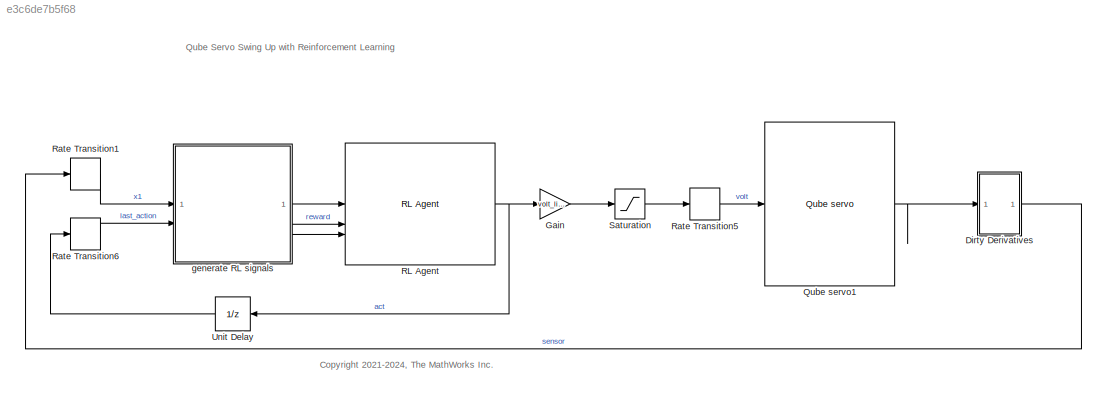
MODEL slx_e3c6de7b5f68
KIND model
CONFIG AbsTol = 1e-3
CONFIG EnableMultiTasking = off
CONFIG FixedStep = auto
CONFIG MaxStep = auto
CONFIG MinStep = auto
CONFIG RelTol = 1e-3
CONFIG SampleTimeConstraint = Unconstrained
CONFIG SolverName = ode23t
CONFIG StartTime = 0.0
CONFIG StopTime = 10.0
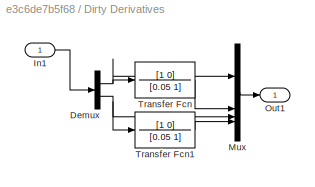
BLOCK [SubSystem] Dirty Derivatives
BLOCK [Demux] Dirty Derivatives/Demux
  Outputs = 2
BLOCK [Inport] Dirty Derivatives/In1
BLOCK [Mux] Dirty Derivatives/Mux
  DisplayOption = bar
BLOCK [Outport] Dirty Derivatives/Out1
BLOCK [TransferFcn] Dirty Derivatives/Transfer Fcn
  Denominator = [0.05 1]
  Numerator = [1 0]
BLOCK [TransferFcn] Dirty Derivatives/Transfer Fcn1
  Denominator = [0.05 1]
  Numerator = [1 0]
BLOCK [Gain] Gain
  Gain = volt_limit
BLOCK [Reference] Qube servo1  REF=QuanserQube/Qube servo
  SourceBlock = QuanserQube/Qube servo
  SourceType = Qube servo 2 model by Simscape
BLOCK [Reference] RL Agent  REF=rllib/RL Agent
  SourceBlock = rllib/RL Agent
  SourceType = RL Agent
BLOCK [RateTransition] Rate Transition1
  OutPortSampleTime = Ts
BLOCK [RateTransition] Rate Transition5
BLOCK [RateTransition] Rate Transition6
  OutPortSampleTime = Ts
BLOCK [Saturate] Saturation
  LowerLimit = -volt_limit
  UpperLimit = volt_limit
BLOCK [UnitDelay] Unit Delay
  HasFrameUpgradeWarning = on
  SampleTime = -1
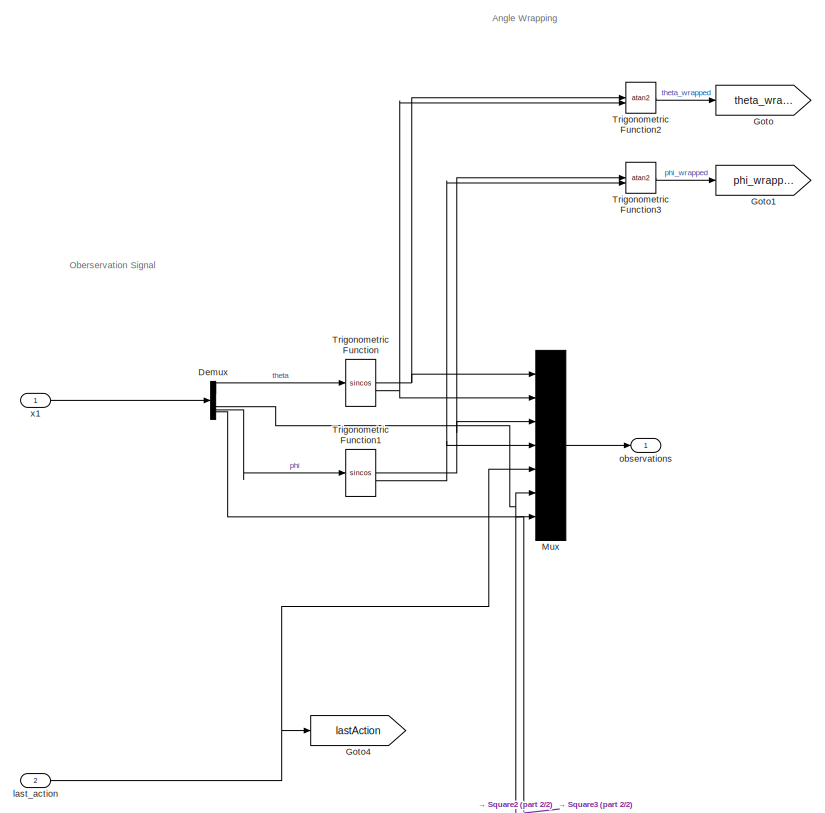
[diagram: generate RL signals - part 1/2, left side, full height]
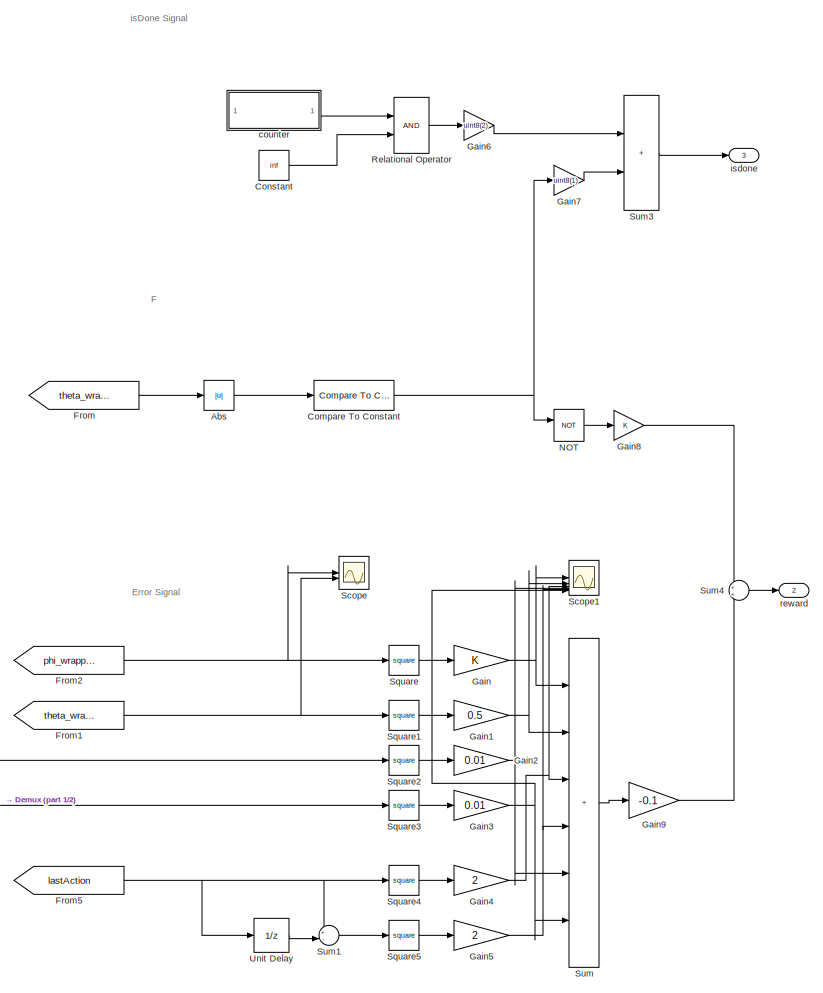
[diagram: generate RL signals - part 2/2, right side, full height]
BLOCK [SubSystem] generate RL signals
BLOCK [Abs] generate RL signals/Abs
  SaturateOnIntegerOverflow = off
BLOCK [Reference] generate RL signals/Compare To Constant  REF=simulink/Logic and Bit
Operations/Compare
To Constant
  SourceBlock = simulink/Logic and Bit\nOperations/Compare\nTo Constant
  SourceType = Compare To Constant
BLOCK [Constant] generate RL signals/Constant
  Value = inf
BLOCK [Demux] generate RL signals/Demux
BLOCK [From] generate RL signals/From
  GotoTag = theta_wrapped
BLOCK [From] generate RL signals/From1
  GotoTag = theta_wrapped
BLOCK [From] generate RL signals/From2
  GotoTag = phi_wrapped
BLOCK [From] generate RL signals/From5
  GotoTag = lastAction
BLOCK [Gain] generate RL signals/Gain
BLOCK [Gain] generate RL signals/Gain1
  Gain = 0.5
BLOCK [Gain] generate RL signals/Gain2
  Gain = 0.01
BLOCK [Gain] generate RL signals/Gain3
  Gain = 0.01
BLOCK [Gain] generate RL signals/Gain4
  Gain = 2
BLOCK [Gain] generate RL signals/Gain5
  Gain = 2
BLOCK [Gain] generate RL signals/Gain6
  Gain = uint8(2)
  OutDataTypeStr = uint8
BLOCK [Gain] generate RL signals/Gain7
  Gain = uint8(1)
  OutDataTypeStr = uint8
BLOCK [Gain] generate RL signals/Gain8
  OutDataTypeStr = double
BLOCK [Gain] generate RL signals/Gain9
  Gain = -0.1
BLOCK [Goto] generate RL signals/Goto
  GotoTag = theta_wrapped
BLOCK [Goto] generate RL signals/Goto1
  GotoTag = phi_wrapped
BLOCK [Goto] generate RL signals/Goto4
  GotoTag = lastAction
BLOCK [Mux] generate RL signals/Mux
  DisplayOption = bar
  Inputs = 7
BLOCK [Logic] generate RL signals/NOT
  AllPortsSameDT = off
  IconShape = distinctive
  Operator = NOT
  OutDataTypeStr = boolean
BLOCK [RelationalOperator] generate RL signals/Relational Operator
  InputSameDT = off
  OutDataTypeStr = boolean
  RndMeth = Simplest
BLOCK [Scope] generate RL signals/Scope
  ActiveDisplayYMaximum = 1
  ActiveDisplayYMinimum = -1
  Floating = off
  GraphicalSettings = {"Style":{"BackgroundColor":[0.12941176470588237,0.12941176470588237,0.12941176470588237],"AxesColor":[0.07058823529411765,0.07058823529411765,0.07058823529411765],"LabelsColor":[0.8509803921568627,0.8509803921568627,0.8509803921568627],"PreserveColors":false,"Visible":[true,true],"LineStyle":["-","-"],"LineWidth":[1.5,1.5],"BarWidth":[0.9,0.9],"LineColor":["auto","auto"],"LineFaceAlpha":[1,1],"Li...<+2135ch>
  MultipleDisplayCache = [{"MaxYLimMag":1,"MaxYLimReal":1,"MinYLimMag":0,"MinYLimReal":-1,"PlotAsMagnitudePhase":false,"ShowGrid":true,"ShowLegend":true,"Title":"%<SignalLabel>","YLabel":""}]
  NumInputPorts = 2
  ScopeFrameLocation = window
  ShowLegend = on
  WasSavedAsWebScope = on
  WindowPosition = [1.000000,1.000000,2560.000000,1381.000000,]
BLOCK [Scope] generate RL signals/Scope1
  ActiveDisplayYMaximum = 160.66023821447735
  ActiveDisplayYMinimum = -17.851137579386368
  DataLoggingVariableName = ScopeData1
  Floating = off
  GraphicalSettings = {"Style":{"BackgroundColor":[0.12941176470588237,0.12941176470588237,0.12941176470588237],"AxesColor":[0.07058823529411765,0.07058823529411765,0.07058823529411765],"LabelsColor":[0.8509803921568627,0.8509803921568627,0.8509803921568627],"PreserveColors":false,"Visible":[true,true,true,true,true,true],"LineStyle":["-","-","-","-","-","-"],"LineWidth":[1.5,1.5,1.5,1.5,1.5,1.5],"BarWidth":[0.9,0.9,0....<+2528ch>
  MultipleDisplayCache = [{"MaxYLimMag":160.66023821447735,"MaxYLimReal":160.66023821447735,"MinYLimMag":0,"MinYLimReal":-17.851137579386368,"PlotAsMagnitudePhase":false,"ShowGrid":true,"ShowLegend":true,"Title":"%<SignalLabel>","YLabel":""}]
  NumInputPorts = 6
  ScopeFrameLocation = window
  ShowLegend = on
  WasSavedAsWebScope = on
  WindowPosition = [1.000000,1.000000,2560.000000,1381.000000,]
BLOCK [Math] generate RL signals/Square
  Operator = square
BLOCK [Math] generate RL signals/Square1
  Operator = square
BLOCK [Math] generate RL signals/Square2
  Operator = square
BLOCK [Math] generate RL signals/Square3
  Operator = square
BLOCK [Math] generate RL signals/Square4
  Operator = square
BLOCK [Math] generate RL signals/Square5
  Operator = square
BLOCK [Sum] generate RL signals/Sum
  IconShape = rectangular
  Inputs = ++++++
BLOCK [Sum] generate RL signals/Sum1
  Inputs = +-|
BLOCK [Sum] generate RL signals/Sum3
  IconShape = rectangular
BLOCK [Sum] generate RL signals/Sum4
BLOCK [Trigonometry] generate RL signals/Trigonometric Function
  Operator = sincos
BLOCK [Trigonometry] generate RL signals/Trigonometric Function1
  Operator = sincos
BLOCK [Trigonometry] generate RL signals/Trigonometric Function2
  Operator = atan2
BLOCK [Trigonometry] generate RL signals/Trigonometric Function3
  Operator = atan2
BLOCK [UnitDelay] generate RL signals/Unit Delay
  HasFrameUpgradeWarning = on
  SampleTime = -1
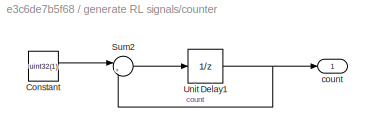
BLOCK [SubSystem] generate RL signals/counter
BLOCK [Constant] generate RL signals/counter/Constant
  Value = uint32(1)
BLOCK [Sum] generate RL signals/counter/Sum2
  AccumDataTypeStr = Inherit: Same as first input
  Inputs = |++
BLOCK [UnitDelay] generate RL signals/counter/Unit Delay1
  HasFrameUpgradeWarning = on
  SampleTime = Ts
BLOCK [Outport] generate RL signals/counter/count
  OutDataTypeStr = uint32
BLOCK [Outport] generate RL signals/isdone
  Port = 3
BLOCK [Inport] generate RL signals/last_action
  Port = 2
BLOCK [Outport] generate RL signals/observations
BLOCK [Outport] generate RL signals/reward
  Port = 2
BLOCK [Inport] generate RL signals/x1
  SampleTime = Ts
ANNOTATION (root): <copyright redacted>
ANNOTATION (root): Qube Servo Swing Up with Reinforcement Learning
ANNOTATION generate RL signals: Angle Wrapping
ANNOTATION generate RL signals: Error Signal
ANNOTATION generate RL signals: F
ANNOTATION generate RL signals: Oberservation Signal
ANNOTATION generate RL signals: isDone Signal
NET Dirty Derivatives/Demux:1 -> Dirty Derivatives/Mux:1, Dirty Derivatives/Transfer Fcn:1
NET Dirty Derivatives/Demux:2 -> Dirty Derivatives/Mux:3, Dirty Derivatives/Transfer Fcn1:1
LINE Dirty Derivatives/In1:1 -> Dirty Derivatives/Demux:1
LINE Dirty Derivatives/Mux:1 -> Dirty Derivatives/Out1:1
LINE Dirty Derivatives/Transfer Fcn1:1 -> Dirty Derivatives/Mux:4
LINE Dirty Derivatives/Transfer Fcn:1 -> Dirty Derivatives/Mux:2
LINE Dirty Derivatives:1 -> Rate Transition1:1
LINE Gain:1 -> Saturation:1
LINE Qube servo1:1 -> Dirty Derivatives:1
NET RL Agent:1 -> Gain:1, Unit Delay:1
LINE Rate Transition1:1 -> generate RL signals:1
LINE Rate Transition5:1 -> Qube servo1:1
LINE Rate Transition6:1 -> generate RL signals:2
LINE Saturation:1 -> Rate Transition5:1
LINE Unit Delay:1 -> Rate Transition6:1
LINE generate RL signals/Abs:1 -> generate RL signals/Compare To Constant:1
NET generate RL signals/Compare To Constant:1 -> generate RL signals/Gain7:1, generate RL signals/NOT:1
LINE generate RL signals/Constant:1 -> generate RL signals/Relational Operator:2
LINE generate RL signals/Demux:1 -> generate RL signals/Trigonometric Function:1
NET generate RL signals/Demux:2 -> generate RL signals/Mux:6, generate RL signals/Square2:1
LINE generate RL signals/Demux:3 -> generate RL signals/Trigonometric Function1:1
NET generate RL signals/Demux:4 -> generate RL signals/Mux:7, generate RL signals/Square3:1
NET generate RL signals/From1:1 -> generate RL signals/Scope:2, generate RL signals/Square1:1
NET generate RL signals/From2:1 -> generate RL signals/Scope:1, generate RL signals/Square:1
NET generate RL signals/From5:1 -> generate RL signals/Square4:1, generate RL signals/Sum1:1, generate RL signals/Unit Delay:1
LINE generate RL signals/From:1 -> generate RL signals/Abs:1
NET generate RL signals/Gain1:1 -> generate RL signals/Scope1:2, generate RL signals/Sum:2
NET generate RL signals/Gain2:1 -> generate RL signals/Scope1:4, generate RL signals/Sum:5
NET generate RL signals/Gain3:1 -> generate RL signals/Scope1:6, generate RL signals/Sum:6
NET generate RL signals/Gain4:1 -> generate RL signals/Scope1:3, generate RL signals/Sum:3
NET generate RL signals/Gain5:1 -> generate RL signals/Scope1:5, generate RL signals/Sum:4
LINE generate RL signals/Gain6:1 -> generate RL signals/Sum3:1
LINE generate RL signals/Gain7:1 -> generate RL signals/Sum3:2
LINE generate RL signals/Gain8:1 -> generate RL signals/Sum4:1
LINE generate RL signals/Gain9:1 -> generate RL signals/Sum4:2
NET generate RL signals/Gain:1 -> generate RL signals/Scope1:1, generate RL signals/Sum:1
LINE generate RL signals/Mux:1 -> generate RL signals/observations:1
LINE generate RL signals/NOT:1 -> generate RL signals/Gain8:1
LINE generate RL signals/Relational Operator:1 -> generate RL signals/Gain6:1
LINE generate RL signals/Square1:1 -> generate RL signals/Gain1:1
LINE generate RL signals/Square2:1 -> generate RL signals/Gain2:1
LINE generate RL signals/Square3:1 -> generate RL signals/Gain3:1
LINE generate RL signals/Square4:1 -> generate RL signals/Gain4:1
LINE generate RL signals/Square5:1 -> generate RL signals/Gain5:1
LINE generate RL signals/Square:1 -> generate RL signals/Gain:1
LINE generate RL signals/Sum1:1 -> generate RL signals/Square5:1
LINE generate RL signals/Sum3:1 -> generate RL signals/isdone:1
LINE generate RL signals/Sum4:1 -> generate RL signals/reward:1
LINE generate RL signals/Sum:1 -> generate RL signals/Gain9:1
NET generate RL signals/Trigonometric Function1:1 -> generate RL signals/Mux:3, generate RL signals/Trigonometric Function3:1
NET generate RL signals/Trigonometric Function1:2 -> generate RL signals/Mux:4, generate RL signals/Trigonometric Function3:2
LINE generate RL signals/Trigonometric Function2:1 -> generate RL signals/Goto:1
LINE generate RL signals/Trigonometric Function3:1 -> generate RL signals/Goto1:1
NET generate RL signals/Trigonometric Function:1 -> generate RL signals/Mux:1, generate RL signals/Trigonometric Function2:1
NET generate RL signals/Trigonometric Function:2 -> generate RL signals/Mux:2, generate RL signals/Trigonometric Function2:2
LINE generate RL signals/Unit Delay:1 -> generate RL signals/Sum1:2
LINE generate RL signals/counter/Constant:1 -> generate RL signals/counter/Sum2:1
LINE generate RL signals/counter/Sum2:1 -> generate RL signals/counter/Unit Delay1:1
NET generate RL signals/counter/Unit Delay1:1 -> generate RL signals/counter/Sum2:2, generate RL signals/counter/count:1
LINE generate RL signals/counter:1 -> generate RL signals/Relational Operator:1
NET generate RL signals/last_action:1 -> generate RL signals/Goto4:1, generate RL signals/Mux:5
LINE generate RL signals/x1:1 -> generate RL signals/Demux:1
LINE generate RL signals:1 -> RL Agent:1
LINE generate RL signals:2 -> RL Agent:2
LINE generate RL signals:3 -> RL Agent:3
note: NET lines group one-source signal fan-out (src -> all destinations, sorted); 1:1 wires keep LINE
